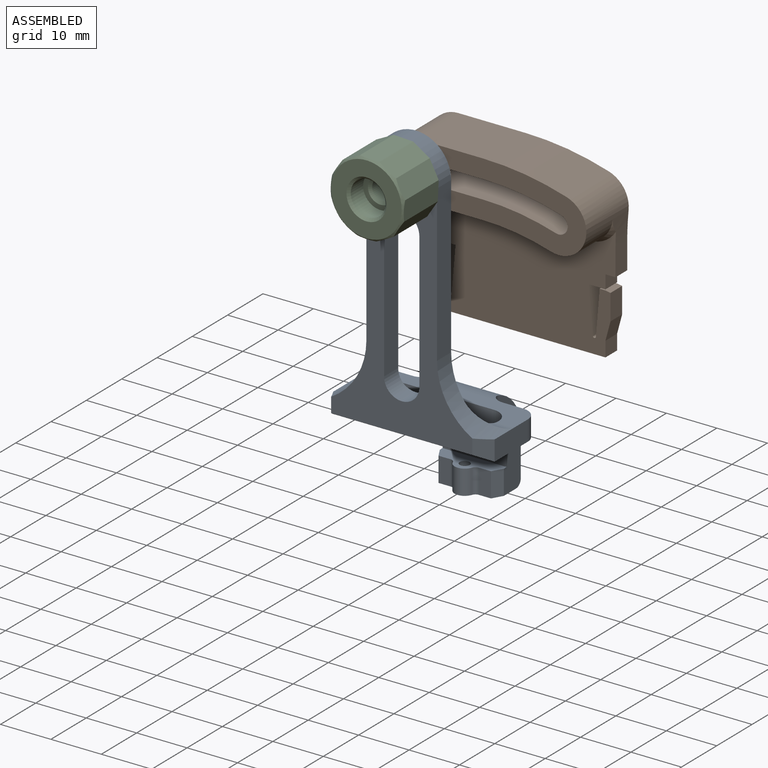
[diagram: assembled view]
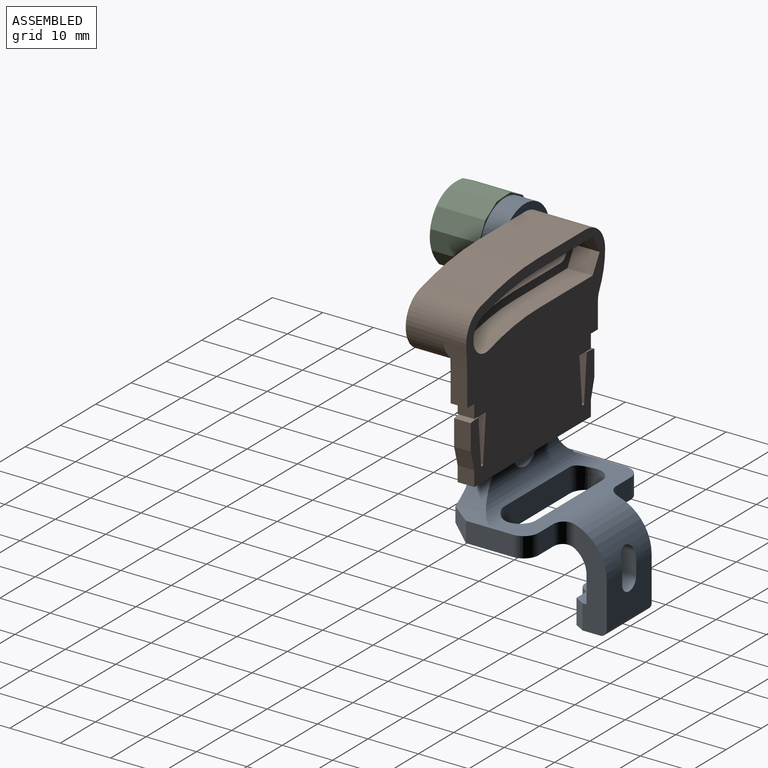
[diagram: assembled view, second angle]
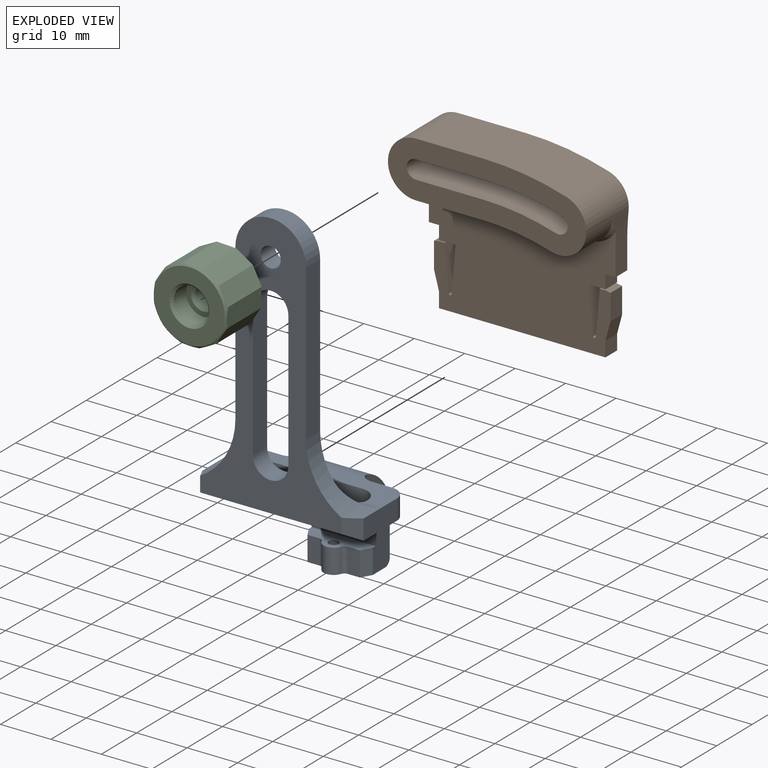
[diagram: exploded view]
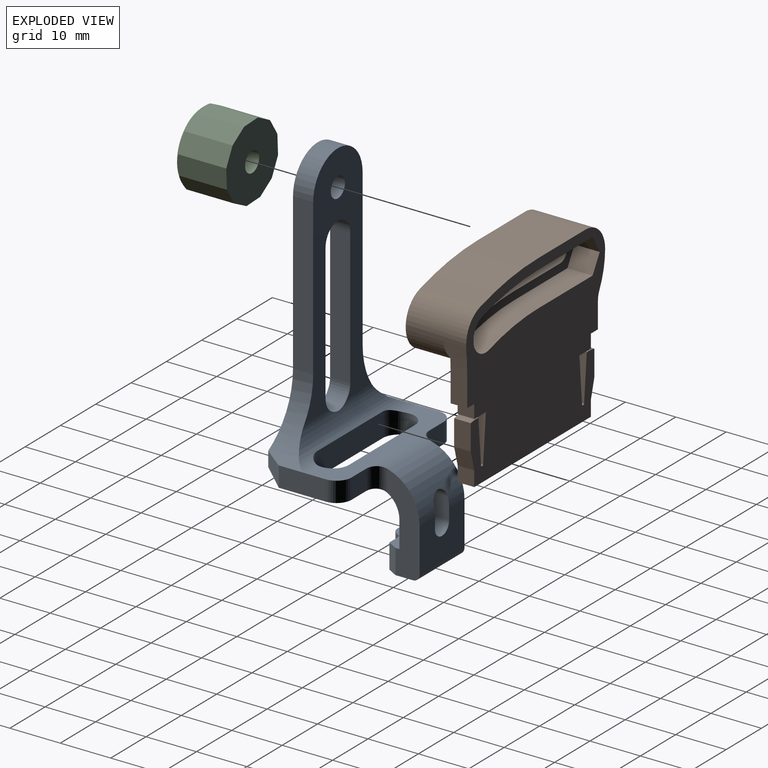
[diagram: exploded view, second angle]
ASSEMBLY  parts=3 mates=2
PART A: 51 faces, bbox 32.1x24.7x69.9 mm
  f0: plane 18.59x6.27mm, normal (-1,0,0), area 76.5mm2, adj f1,f2,f19,f20,f21,f22,f23,f24
  f1: plane 12.7x7.48mm, normal (0,0,-1), area 70.7mm2, adj f0,f3,f21,f35,f36,f37,f38,f39
  f2: plane 12.7x4.8mm, normal (0,0,1), area 36.7mm2, adj f0,f3,f20,f35,f36,f37,f38,f39
  f3: plane 18.59x6.27mm, normal (1,0,0), area 76.5mm2, adj f1,f2,f19,f20,f21,f22,f23,f25
  f4: cylinder r=5mm len=32mm, axis (-1,0,0), area 136.5mm2, adj f8,f12,f16,f18,f27,f28,f29,f43
  f5: plane 4.11x4mm, normal (0,1,0), area 16.4mm2, adj f10,f18,f24,f31
  f6: cylinder r=7mm len=14mm, axis (0,1,0), area 88mm2, adj f7,f14,f15,f16
  f7: plane 30.88x4mm, normal (-1,0,0), area 123.5mm2, adj f6,f8,f15,f16
  f8: cylinder r=13.89mm len=13mm, axis (0,1,0), area 74.6mm2, adj f4,f7,f9,f15,f16,f32
  f9: plane 9.37x4mm, normal (-1,0,0), area 37.5mm2, adj f8,f10,f18,f31,f32
  f10: plane 32x12.37mm, normal (0,0,-1), area 241.7mm2, adj f5,f9,f11,f17,f19,f26,f27,f28
  f11: plane 9.37x4mm, normal (1,0,0), area 37.5mm2, adj f10,f12,f18,f30,f33
  f12: cylinder r=13.89mm len=13mm, axis (0,1,0), area 74.6mm2, adj f4,f11,f14,f15,f16,f33
  f13: cylinder r=2mm len=4mm, axis (0,1,0), area 50.3mm2, adj f15,f16
  f14: plane 30.88x4mm, normal (1,0,0), area 123.5mm2, adj f6,f12,f15,f16
  f15: plane 52.88x28mm, normal (0,-1,0), area 569.4mm2, adj f6,f7,f8,f12,f13,f14,f32,f33
  f16: plane 45.88x19.07mm, normal (0,1,0), area 398.2mm2, adj f4,f6,f7,f8,f12,f13,f14,f43
  f17: plane 4.11x4mm, normal (0,1,0), area 16.4mm2, adj f10,f18,f25,f30
  f18: plane 32x6.83mm, normal (0,0,1), area 126.2mm2, adj f4,f5,f9,f11,f17,f23,f26,f27
  f19: cylinder r=4.81mm len=17.78mm, axis (-1,0,0), area 83.7mm2, adj f0,f3,f10,f20,f24,f25,f48,f49
  f20: plane 12.7x5.27mm, normal (0,-1,0), area 51.6mm2, adj f0,f2,f3,f19,f47,f49,f50
  f21: cylinder r=1.33mm len=12.7mm, axis (-1,0,0), area 26.4mm2, adj f0,f1,f3,f22
  f22: plane 12.7x8.82mm, normal (0,1,0), area 96.7mm2, adj f0,f3,f21,f23,f47,f49,f50
  f23: cylinder r=8.81mm len=17.78mm, axis (-1,0,0), area 164.7mm2, adj f0,f3,f18,f22,f24,f25,f48,f49
  f24: cylinder r=2.54mm len=4.73mm, axis (0,0,-1), area 16.3mm2, adj f0,f5,f19,f23
  f25: cylinder r=2.54mm len=4.73mm, axis (0,0,1), area 16.3mm2, adj f3,f17,f19,f23
  f26: plane 18.66x4mm, normal (0,-1,0), area 74.6mm2, adj f10,f18,f27,f29
  f27: cylinder r=3.17mm len=6.35mm, axis (0,0,1), area 41.6mm2, adj f4,f10,f18,f26,f28
  f28: plane 18.66x4.75mm, normal (0,1,0), area 88.7mm2, adj f4,f10,f27,f29
  f29: cylinder r=3.17mm len=6.35mm, axis (0,0,1), area 41.6mm2, adj f4,f10,f18,f26,f28
  f30: cylinder r=3mm len=4mm, axis (0,0,-1), area 18.8mm2, adj f10,f11,f17,f18
  f31: cylinder r=3mm len=4mm, axis (0,0,1), area 18.8mm2, adj f5,f9,f10,f18
  f32: plane 5x3.53mm, normal (-0.87,-0.5,0), area 13.8mm2, adj f8,f9,f15,f34
  f33: plane 5x3.53mm, normal (0.87,-0.5,0), area 13.8mm2, adj f11,f12,f15,f34
  f34: plane 32x3.46mm, normal (0,-0.5,-0.87), area 120mm2, adj f10,f15,f32,f33
  f35: plane 4.88x2.37mm, normal (0,-1,0), area 11.6mm2, adj f1,f2,f36,f41
  f36: cylinder r=0.99mm len=4.88mm, axis (0,0,-1), area 6mm2, adj f1,f2,f35,f37
  f37: cylinder r=2mm len=4.88mm, axis (0,0,-1), area 24.1mm2, adj f1,f2,f36,f38
  f38: cylinder r=0.99mm len=4.88mm, axis (0,0,-1), area 6mm2, adj f1,f2,f37,f39
  f39: plane 4.88x2.37mm, normal (0,-1,0), area 11.6mm2, adj f1,f2,f38,f42
  f40: cylinder r=0.99mm len=4.88mm, axis (0,0,-1), area 30.4mm2, adj f1,f2
  f41: plane 4.88x2mm, normal (0.87,-0.5,0), area 11.3mm2, adj f1,f2,f3,f35
  f42: plane 4.88x2mm, normal (-0.87,-0.5,0), area 11.3mm2, adj f0,f1,f2,f39
  f43: cylinder r=3.5mm len=7mm, axis (0,1,0), area 44.4mm2, adj f4,f15,f16,f44,f46
  f44: plane 27x4mm, normal (1,0,0), area 108mm2, adj f15,f16,f43,f45
  f45: cylinder r=3.5mm len=7mm, axis (0,1,0), area 44mm2, adj f15,f16,f44,f46
  f46: plane 27x4mm, normal (-1,0,0), area 108mm2, adj f15,f16,f43,f45
  f47: cylinder r=2mm len=4mm, axis (0,1,0), area 25.1mm2, adj f20,f22,f49,f50
  f48: cylinder r=2mm len=5.69mm, axis (0,1,0), area 29mm2, adj f19,f23,f49,f50
  f49: plane 4.35x4.08mm, normal (-1,0,0), area 16.4mm2, adj f19,f20,f22,f23,f47,f48
  f50: plane 4.35x4.08mm, normal (1,0,0), area 16.4mm2, adj f19,f20,f22,f23,f47,f48
PART B: 55 faces, bbox 40.7x12x34.1 mm
  f0: plane 13.25x7mm, normal (0,0,-1), area 92.7mm2, adj f1,f5,f13,f43
  f1: cylinder r=53.37mm len=15.55mm, axis (0,1,0), area 110.5mm2, adj f0,f2,f13,f43
  f2: cylinder r=1.83mm len=7mm, axis (0,1,0), area 40.2mm2, adj f1,f3,f13,f43
  f3: cylinder r=49.71mm len=14.49mm, axis (0,1,0), area 102.9mm2, adj f2,f4,f13,f43
  f4: plane 13.25x7mm, normal (0,0,1), area 92.7mm2, adj f3,f5,f13,f43
  f5: cylinder r=1.83mm len=7mm, axis (0,1,0), area 40.2mm2, adj f0,f4,f13,f43
  f6: plane 39.34x34.11mm, normal (0,1,0), area 943.5mm2, adj f7,f8,f9,f10,f14,f15,f16,f17
  f7: cylinder r=5.54mm len=12mm, axis (0,1,0), area 169.6mm2, adj f6,f10,f11,f13,f34,f51
  f8: cylinder r=5.54mm len=12mm, axis (0,1,0), area 164.7mm2, adj f6,f9,f12,f13,f33,f54
  f9: cylinder r=57.08mm len=16.63mm, axis (0,1,0), area 202.5mm2, adj f6,f8,f10,f13
  f10: plane 13.25x12mm, normal (0,0,1), area 159mm2, adj f6,f7,f9,f13
  f11: plane 13.25x7.5mm, normal (0,0,-1), area 99.4mm2, adj f7,f12,f13,f52
  f12: cylinder r=46.01mm len=13.41mm, axis (0,1,0), area 102mm2, adj f8,f11,f13,f53
  f13: plane 39.34x13.31mm, normal (0,-1,0), area 297.1mm2, adj f0,f1,f2,f3,f4,f5,f7,f8
  f14: plane 8.83x3.3mm, normal (1,0,0.08), area 29.2mm2, adj f6,f15,f41,f42
  f15: plane 3.3x1.15mm, normal (0,0,1), area 3.8mm2, adj f6,f14,f16,f42
  f16: plane 3.3x1mm, normal (-0.17,0,0.98), area 3.4mm2, adj f6,f15,f17,f42
  f17: plane 5.09x3.3mm, normal (-1,0,0), area 16.8mm2, adj f6,f16,f18,f42
  f18: plane 3.73x3.3mm, normal (-0.97,0,-0.26), area 12.8mm2, adj f6,f17,f19,f42
  f19: plane 3.3x3mm, normal (-1,0,0), area 9.9mm2, adj f6,f18,f20,f42
  f20: plane 33x3.3mm, normal (0,0,-1), area 108.9mm2, adj f6,f19,f21,f42
  f21: plane 3.3x3mm, normal (1,0,0), area 9.9mm2, adj f6,f20,f22,f42
  f22: plane 3.73x3.3mm, normal (0.97,0,-0.26), area 12.8mm2, adj f6,f21,f23,f42
  f23: plane 5.09x3.3mm, normal (1,0,0), area 16.8mm2, adj f6,f22,f24,f42
  f24: plane 3.3x1mm, normal (0.17,0,0.98), area 3.4mm2, adj f6,f23,f25,f42
  f25: plane 3.3x1.15mm, normal (0,0,1), area 3.8mm2, adj f6,f24,f26,f42
  f26: plane 8.83x3.3mm, normal (-1,0,0.08), area 29.2mm2, adj f6,f25,f27,f42
  f27: cylinder r=0.3mm len=3.3mm, axis (0,1,0), area 2.9mm2, adj f6,f26,f28,f42
  f28: plane 9.03x3.3mm, normal (1,0,0.08), area 29.9mm2, adj f6,f27,f29,f42
  f29: plane 3.3x3.27mm, normal (0,0,-1), area 10.8mm2, adj f6,f28,f30,f42
  f30: plane 3.3x2.7mm, normal (1,0,0), area 8.9mm2, adj f6,f29,f31,f42
  f31: plane 3.3x2mm, normal (0,0,-1), area 6.6mm2, adj f6,f30,f32,f42
  f32: plane 5.1x3.3mm, normal (1,0,0), area 16.8mm2, adj f6,f31,f33,f42
  f33: cylinder r=60.29mm len=5.8mm, axis (0,1,0), area 21.3mm2, adj f6,f8,f32,f42,f54
  f34: cylinder r=15.06mm len=6.78mm, axis (0,1,0), area 26mm2, adj f6,f7,f35,f42,f51
  f35: cylinder r=4mm len=3.3mm, axis (0,1,0), area 6.2mm2, adj f6,f34,f36,f42
  f36: plane 5.1x3.3mm, normal (-1,0,0), area 16.8mm2, adj f6,f35,f37,f42
  f37: plane 3.3x2mm, normal (0,0,-1), area 6.6mm2, adj f6,f36,f38,f42
  f38: plane 3.3x2.7mm, normal (-1,0,0), area 8.9mm2, adj f6,f37,f39,f42
  f39: plane 3.3x3.27mm, normal (0,0,-1), area 10.8mm2, adj f6,f38,f40,f42
  f40: plane 9.03x3.3mm, normal (-1,0,0.08), area 29.9mm2, adj f6,f39,f41,f42
  f41: cylinder r=0.3mm len=3.3mm, axis (0,1,0), area 2.9mm2, adj f6,f14,f40,f42
  f42: plane 38.69x25.01mm, normal (0,-1,0), area 739.7mm2, adj f14,f15,f16,f17,f18,f19,f20,f21
  f43: plane 35.74x9.17mm, normal (0,1,0), area 122.5mm2, adj f0,f1,f2,f3,f4,f5,f44,f45
  f44: plane 15.25x5mm, normal (0,0,1), area 76.2mm2, adj f6,f43,f45,f50
  f45: plane 5x3.47mm, normal (0.87,0,0.5), area 20mm2, adj f6,f43,f44,f46
  f46: plane 5x3.47mm, normal (0.87,0,-0.5), area 20mm2, adj f6,f43,f45,f47
  f47: plane 15.25x5mm, normal (0,0,-1), area 76.2mm2, adj f6,f43,f46,f48
  f48: cylinder r=55.01mm len=16.03mm, axis (0,-1,0), area 81.3mm2, adj f6,f43,f47,f49
  f49: cylinder r=3.47mm len=6.78mm, axis (0,-1,0), area 54.5mm2, adj f6,f43,f48,f50
  f50: cylinder r=48.08mm len=14.01mm, axis (0,-1,0), area 71.1mm2, adj f6,f43,f44,f49
  f51: cone r=5.54mm half-angle=30deg, axis (0,1,0), area 9.4mm2, adj f7,f34,f42,f52
  f52: plane 13.25x1.2mm, normal (0,-0.5,-0.87), area 18.4mm2, adj f11,f42,f51,f53
  f53: cone r=45.31mm half-angle=30deg, axis (0,-1,0), area 18.7mm2, adj f12,f42,f52,f54
  f54: cone r=5.54mm half-angle=30deg, axis (0,1,0), area 11.9mm2, adj f8,f33,f42,f53
PART C: 20 faces, bbox 10x15x15 mm
  f0: cone r=7.5mm half-angle=45deg, axis (1,0,0), area 20.9mm2, adj f1,f8,f9,f10,f11,f12,f13,f14
  f1: plane 14x14mm, normal (-1,0,0), area 104.9mm2, adj f0,f7
  f2: cylinder r=3.45mm len=6.9mm, axis (1,0,0), area 75.9mm2, adj f3,f7
  f3: plane 6.9x6.9mm, normal (-1,0,0), area 17.8mm2, adj f2,f6
  f4: cylinder r=2mm len=5.5mm, axis (1,0,0), area 69.1mm2, adj f5,f6
  f5: plane 14.66x14.66mm, normal (1,0,0), area 156.2mm2, adj f4,f8,f9,f10,f11,f12,f13,f14
  f6: cone r=2.5mm half-angle=45deg, axis (-1,0,0), area 10mm2, adj f3,f4
  f7: cone r=3.95mm half-angle=45deg, axis (-1,0,0), area 16.4mm2, adj f1,f2
  f8: plane 9.76x3.88mm, normal (0,0.05,-1), area 37.5mm2, adj f0,f5,f18,f19
  f9: plane 9.76x3.45mm, normal (0,0.89,-0.46), area 37.5mm2, adj f0,f5,f14,f19
  f10: plane 9.76x3.27mm, normal (0,0.84,0.54), area 37.5mm2, adj f0,f5,f14,f15
  f11: plane 9.76x3.88mm, normal (0,-0.05,1), area 37.5mm2, adj f0,f5,f15,f16
  f12: plane 9.76x3.45mm, normal (0,-0.89,0.46), area 37.5mm2, adj f0,f5,f16,f17
  f13: plane 9.76x3.27mm, normal (0,-0.84,-0.54), area 37.5mm2, adj f0,f5,f17,f18
  f14: plane 9.76x3.88mm, normal (0,1,0.05), area 37.5mm2, adj f0,f5,f9,f10
  f15: plane 9.76x3.45mm, normal (0,0.46,0.89), area 37.5mm2, adj f0,f5,f10,f11
  f16: plane 9.76x3.27mm, normal (0,-0.54,0.84), area 37.5mm2, adj f0,f5,f11,f12
  f17: plane 9.76x3.88mm, normal (0,-1,-0.05), area 37.5mm2, adj f0,f5,f12,f13
  f18: plane 9.76x3.45mm, normal (0,-0.46,-0.89), area 37.5mm2, adj f0,f5,f8,f13
  f19: plane 9.76x3.27mm, normal (0,0.54,-0.84), area 37.5mm2, adj f0,f5,f8,f9
PLACE A t=(1.98,-29.48,5.52)mm
PLACE B t=(1.98,-17.48,5.52)mm
PLACE C rot(axis=(-0.58,-0.58,0.58),120deg) t=(1.98,-33.48,5.52)mm
MATE fastened A.f13 <-> B.f5  axis (0,1,0) through (1.98,-29.48,5.52)mm
MATE fastened C.f0 <-> A.f6  axis (0,1,0) through (1.98,-33.48,5.52)mm
